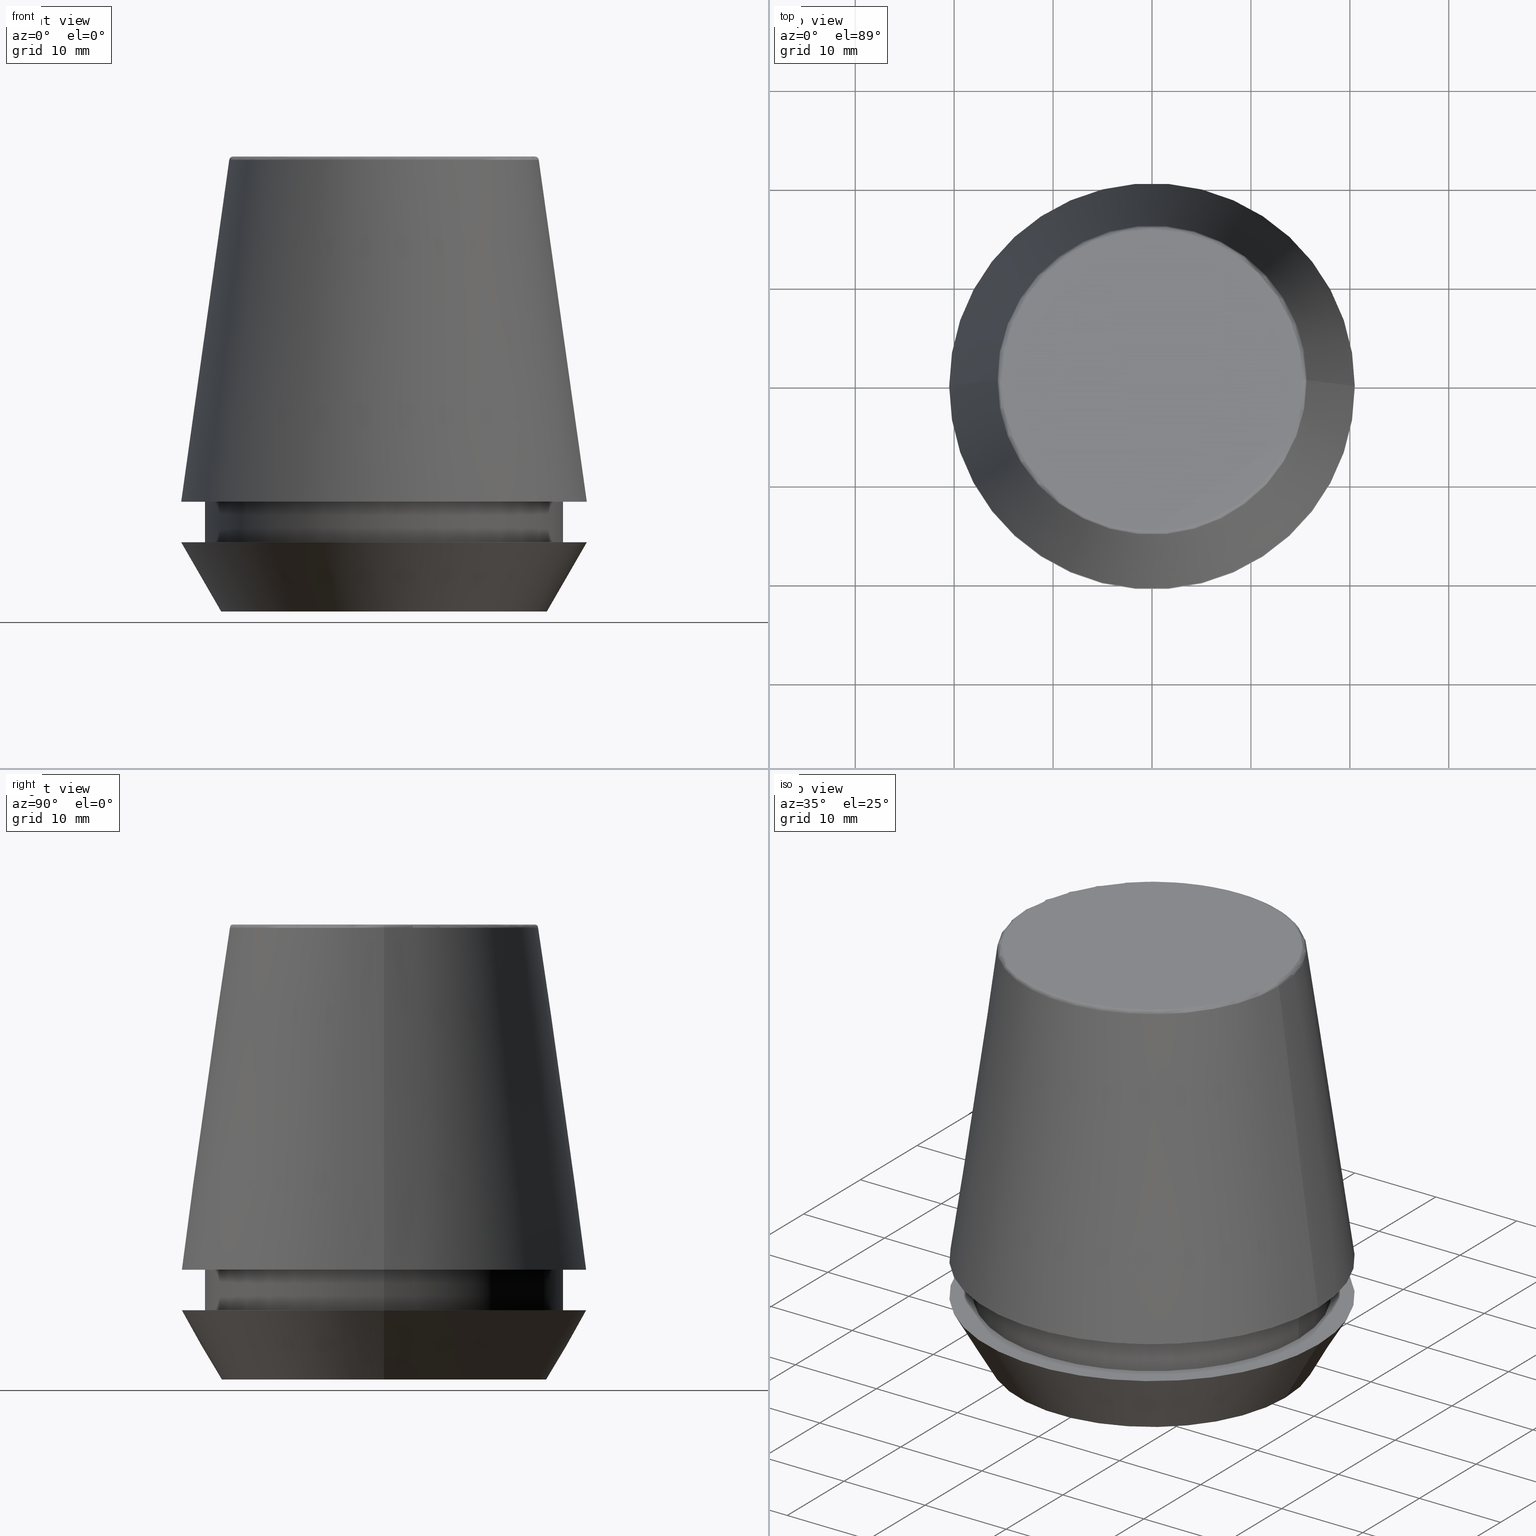
[diagram: canonical four-view strip — front | top / right | iso, engineering-drawing reading convention]
A machine part, canonical four-view strip (front | top / right | iso — engineering-drawing reading convention). The complete STEP part file that produces these views, byte-faithful:
ISO-10303-21;
HEADER;
FILE_DESCRIPTION (( 'STEP AP203' ),
    '1' );
FILE_NAME ('TAP COLLET ER 40G 11.0 X 9.0.STEP',
    '2019-04-10T03:54:42',
    ( '' ),
    ( '' ),
    'SwSTEP 2.0',
    'SolidWorks 2014',
    '' );
FILE_SCHEMA (( 'CONFIG_CONTROL_DESIGN' ));
ENDSEC;

DATA;
#1 = FACE_OUTER_BOUND ( 'NONE', #145, .T. ) ;
#2 = DIRECTION ( 'NONE',  ( 1.224646799147353200E-016, 1.000000000000000000, 0.0000000000000000000 ) ) ;
#3 = CARTESIAN_POINT ( 'NONE',  ( -20.50000000000000000, 2.510525938252074100E-015, 7.000000000000006200 ) ) ;
#4 = DIRECTION ( 'NONE',  ( -0.0000000000000000000, -0.0000000000000000000, 1.000000000000000000 ) ) ;
#5 = DIRECTION ( 'NONE',  ( -0.0000000000000000000, -0.0000000000000000000, 1.000000000000000000 ) ) ;
#6 = ORIENTED_EDGE ( 'NONE', *, *, #98, .F. ) ;
#7 = ORIENTED_EDGE ( 'NONE', *, *, #323, .F. ) ;
#8 = CARTESIAN_POINT ( 'NONE',  ( 0.0000000000000000000, 0.0000000000000000000, 11.09999999999999800 ) ) ;
#9 = AXIS2_PLACEMENT_3D ( 'NONE', #52, #235, #18 ) ;
#10 = EDGE_LOOP ( 'NONE', ( #175, #171 ) ) ;
#11 = FACE_OUTER_BOUND ( 'NONE', #168, .T. ) ;
#12 = CARTESIAN_POINT ( 'NONE',  ( 0.0000000000000000000, 0.0000000000000000000, 46.00000000000000000 ) ) ;
#13 = CARTESIAN_POINT ( 'NONE',  ( 0.0000000000000000000, 0.0000000000000000000, 46.00000000000000000 ) ) ;
#14 = PERSON_AND_ORGANIZATION ( #243, #101 ) ;
#15 = VERTEX_POINT ( 'NONE', #64 ) ;
#16 = DIRECTION ( 'NONE',  ( 0.0000000000000000000, 0.0000000000000000000, -1.000000000000000000 ) ) ;
#17 = EDGE_CURVE ( 'NONE', #165, #26, #155, .T. ) ;
#18 = DIRECTION ( 'NONE',  ( 0.0000000000000000000, 0.0000000000000000000, -1.000000000000000000 ) ) ;
#19 = ADVANCED_FACE ( 'NONE', ( #1 ), #350, .T. ) ;
#20 = DIRECTION ( 'NONE',  ( 1.000000000000000000, 0.0000000000000000000, 0.0000000000000000000 ) ) ;
#21 = ORIENTED_EDGE ( 'NONE', *, *, #296, .T. ) ;
#22 = PRODUCT_DEFINITION_FORMATION_WITH_SPECIFIED_SOURCE ( 'ANY', '', #84, .NOT_KNOWN. ) ;
#23 = ADVANCED_FACE ( 'NONE', ( #266 ), #183, .F. ) ;
#24 = APPROVAL ( #349, 'UNSPECIFIED' ) ;
#25 = ADVANCED_FACE ( 'NONE', ( #223, #242 ), #329, .F. ) ;
#26 = VERTEX_POINT ( 'NONE', #280 ) ;
#27 = MANIFOLD_SOLID_BREP ( 'Revolve1', #365 ) ;
#28 = PERSON_AND_ORGANIZATION_ROLE ( 'design_supplier' ) ;
#29 = EDGE_LOOP ( 'NONE', ( #45, #6 ) ) ;
#30 = DIRECTION ( 'NONE',  ( 1.000000000000000000, 0.0000000000000000000, 0.0000000000000000000 ) ) ;
#31 = DIRECTION ( 'NONE',  ( 1.000000000000000000, 0.0000000000000000000, 0.0000000000000000000 ) ) ;
#32 = PRODUCT_DEFINITION ( 'UNKNOWN', '', #22, #112 ) ;
#33 = CARTESIAN_POINT ( 'NONE',  ( 0.0000000000000000000, 0.0000000000000000000, 0.0000000000000000000 ) ) ;
#34 = DIRECTION ( 'NONE',  ( 0.0000000000000000000, -0.0000000000000000000, 1.000000000000000000 ) ) ;
#35 = CARTESIAN_POINT ( 'NONE',  ( 0.0000000000000000000, 0.0000000000000000000, 0.0000000000000000000 ) ) ;
#36 = DIRECTION ( 'NONE',  ( -0.4999999999999941700, 6.123233995736694500E-017, 0.8660254037844420400 ) ) ;
#37 = LOCAL_TIME ( 9, 24, 42.00000000000000000, #356 ) ;
#38 = DIRECTION ( 'NONE',  ( -0.0000000000000000000, -0.0000000000000000000, 1.000000000000000000 ) ) ;
#39 = APPROVAL_PERSON_ORGANIZATION ( #287, #91, #63 ) ;
#40 = CALENDAR_DATE ( 2019, 10, 4 ) ;
#41 = DIRECTION ( 'NONE',  ( -0.0000000000000000000, -0.0000000000000000000, 1.000000000000000000 ) ) ;
#42 = DIRECTION ( 'NONE',  ( -0.0000000000000000000, -0.0000000000000000000, 1.000000000000000000 ) ) ;
#43 = DIRECTION ( 'NONE',  ( -0.0000000000000000000, -0.0000000000000000000, 1.000000000000000000 ) ) ;
#44 = DATE_AND_TIME ( #81, #37 ) ;
#45 = ORIENTED_EDGE ( 'NONE', *, *, #296, .F. ) ;
#46 = ORIENTED_EDGE ( 'NONE', *, *, #143, .T. ) ;
#47 = AXIS2_PLACEMENT_3D ( 'NONE', #331, #122, #301 ) ;
#48 = FACE_OUTER_BOUND ( 'NONE', #170, .T. ) ;
#49 = DIRECTION ( 'NONE',  ( 0.4999999999999941700, 0.0000000000000000000, 0.8660254037844420400 ) ) ;
#50 = PERSON_AND_ORGANIZATION ( #243, #101 ) ;
#51 = AXIS2_PLACEMENT_3D ( 'NONE', #355, #94, #154 ) ;
#52 = CARTESIAN_POINT ( 'NONE',  ( 15.24773554530077600, 0.0000000000000000000, 45.60000000000000100 ) ) ;
#53 = AXIS2_PLACEMENT_3D ( 'NONE', #222, #2, #192 ) ;
#54 = DATE_AND_TIME ( #151, #386 ) ;
#55 = EDGE_CURVE ( 'NONE', #58, #269, #137, .T. ) ;
#56 = EDGE_CURVE ( 'NONE', #208, #327, #194, .T. ) ;
#57 = EDGE_LOOP ( 'NONE', ( #114, #239, #246, #314 ) ) ;
#58 = VERTEX_POINT ( 'NONE', #93 ) ;
#59 = PERSON_AND_ORGANIZATION ( #243, #101 ) ;
#60 = EDGE_LOOP ( 'NONE', ( #77, #247, #211, #387 ) ) ;
#61 = CARTESIAN_POINT ( 'NONE',  ( 0.0000000000000000000, 0.0000000000000000000, 0.0000000000000000000 ) ) ;
#62 = DATE_AND_TIME ( #40, #351 ) ;
#63 = APPROVAL_ROLE ( '' ) ;
#64 = CARTESIAN_POINT ( 'NONE',  ( 15.64384277279740400, 2.213191991290356800E-015, 45.65566924038402900 ) ) ;
#65 = AXIS2_PLACEMENT_3D ( 'NONE', #190, #354, #148 ) ;
#66 = CALENDAR_DATE ( 2019, 10, 4 ) ;
#67 = DIRECTION ( 'NONE',  ( 1.000000000000000000, 0.0000000000000000000, 0.0000000000000000000 ) ) ;
#68 = VERTEX_POINT ( 'NONE', #3 ) ;
#69 = EDGE_LOOP ( 'NONE', ( #191, #219, #209, #345 ) ) ;
#70 = DIRECTION ( 'NONE',  ( 1.000000000000000000, 0.0000000000000000000, 0.0000000000000000000 ) ) ;
#71 = APPROVAL_DATE_TIME ( #44, #91 ) ;
#72 =( GEOMETRIC_REPRESENTATION_CONTEXT ( 3 ) GLOBAL_UNCERTAINTY_ASSIGNED_CONTEXT ( ( #233 ) ) GLOBAL_UNIT_ASSIGNED_CONTEXT ( ( #330, #121, #300 ) ) REPRESENTATION_CONTEXT ( 'NONE', 'WORKASPACE' ) );
#73 = DIRECTION ( 'NONE',  ( 1.000000000000000000, 0.0000000000000000000, 0.0000000000000000000 ) ) ;
#74 = PERSON_AND_ORGANIZATION ( #243, #101 ) ;
#75 = CC_DESIGN_SECURITY_CLASSIFICATION ( #215, ( #22 ) ) ;
#76 = CIRCLE ( 'NONE', #53, 0.3999999999999975800 ) ;
#77 = ORIENTED_EDGE ( 'NONE', *, *, #143, .F. ) ;
#78 = DIRECTION ( 'NONE',  ( -0.0000000000000000000, -0.0000000000000000000, 1.000000000000000000 ) ) ;
#79 = DIRECTION ( 'NONE',  ( -1.000000000000000000, 0.0000000000000000000, -0.0000000000000000000 ) ) ;
#80 = EDGE_CURVE ( 'NONE', #109, #108, #131, .T. ) ;
#81 = CALENDAR_DATE ( 2019, 10, 4 ) ;
#82 = CARTESIAN_POINT ( 'NONE',  ( 0.0000000000000000000, 0.0000000000000000000, 45.60000000000000100 ) ) ;
#83 = LOCAL_TIME ( 9, 24, 42.00000000000000000, #140 ) ;
#84 = PRODUCT ( 'TAP COLLET ER 40G 11.0 X 9.0', 'TAP COLLET ER 40G 11.0 X 9.0', '', ( #385 ) ) ;
#85 = ORIENTED_EDGE ( 'NONE', *, *, #80, .F. ) ;
#86 = EDGE_LOOP ( 'NONE', ( #107, #85 ) ) ;
#87 = ADVANCED_FACE ( 'NONE', ( #48 ), #293, .T. ) ;
#88 = EDGE_CURVE ( 'NONE', #232, #108, #359, .T. ) ;
#89 = CARTESIAN_POINT ( 'NONE',  ( 0.0000000000000000000, 20.50032537154048700, 11.09999999999999800 ) ) ;
#90 = DATE_TIME_ROLE ( 'creation_date' ) ;
#91 = APPROVAL ( #278, 'UNSPECIFIED' ) ;
#92 = ORIENTED_EDGE ( 'NONE', *, *, #136, .F. ) ;
#93 = CARTESIAN_POINT ( 'NONE',  ( 16.45854811567268100, 0.0000000000000000000, 0.0000000000000000000 ) ) ;
#94 = DIRECTION ( 'NONE',  ( -0.0000000000000000000, -0.0000000000000000000, 1.000000000000000000 ) ) ;
#95 = LINE ( 'NONE', #206, #244 ) ;
#96 = VERTEX_POINT ( 'NONE', #160 ) ;
#97 = CARTESIAN_POINT ( 'NONE',  ( -20.50032537154048700, 0.0000000000000000000, 11.09999999999999800 ) ) ;
#98 = EDGE_CURVE ( 'NONE', #141, #177, #125, .T. ) ;
#99 = CARTESIAN_POINT ( 'NONE',  ( 0.0000000000000000000, 0.0000000000000000000, 7.000000000000006200 ) ) ;
#100 = VECTOR ( 'NONE', #334, 1000.000000000000000 ) ;
#101 = ORGANIZATION ( 'UNSPECIFIED', 'UNSPECIFIED', '' ) ;
#102 = CARTESIAN_POINT ( 'NONE',  ( 18.10000000000000500, 0.0000000000000000000, 46.00000000000000000 ) ) ;
#103 = FACE_OUTER_BOUND ( 'NONE', #69, .T. ) ;
#104 = CIRCLE ( 'NONE', #205, 15.24773554530077600 ) ;
#105 = DIRECTION ( 'NONE',  ( 1.000000000000000000, 0.0000000000000000000, 0.0000000000000000000 ) ) ;
#106 = ADVANCED_FACE ( 'NONE', ( #103 ), #182, .T. ) ;
#107 = ORIENTED_EDGE ( 'NONE', *, *, #174, .F. ) ;
#108 = VERTEX_POINT ( 'NONE', #97 ) ;
#109 = VERTEX_POINT ( 'NONE', #309 ) ;
#110 = ORIENTED_EDGE ( 'NONE', *, *, #180, .F. ) ;
#111 = LINE ( 'NONE', #313, #366 ) ;
#112 = DESIGN_CONTEXT ( 'detailed design', #353, 'design' ) ;
#113 = CIRCLE ( 'NONE', #268, 20.50000000000000000 ) ;
#114 = ORIENTED_EDGE ( 'NONE', *, *, #346, .F. ) ;
#115 = ORIENTED_EDGE ( 'NONE', *, *, #281, .F. ) ;
#116 = ORIENTED_EDGE ( 'NONE', *, *, #207, .T. ) ;
#117 = CYLINDRICAL_SURFACE ( 'NONE', #144, 18.10000000000000500 ) ;
#118 = AXIS2_PLACEMENT_3D ( 'NONE', #13, #286, #197 ) ;
#119 = APPROVAL_ROLE ( '' ) ;
#120 = VECTOR ( 'NONE', #167, 1000.000000000000000 ) ;
#121 =( NAMED_UNIT ( * ) PLANE_ANGLE_UNIT ( ) SI_UNIT ( $, .RADIAN. ) );
#122 = DIRECTION ( 'NONE',  ( -0.0000000000000000000, -0.0000000000000000000, 1.000000000000000000 ) ) ;
#123 = DIRECTION ( 'NONE',  ( 1.000000000000000000, 0.0000000000000000000, 0.0000000000000000000 ) ) ;
#124 = DIRECTION ( 'NONE',  ( -0.0000000000000000000, -0.0000000000000000000, 1.000000000000000000 ) ) ;
#125 = CIRCLE ( 'NONE', #364, 18.10000000000000100 ) ;
#126 = DIRECTION ( 'NONE',  ( -0.0000000000000000000, -0.0000000000000000000, 1.000000000000000000 ) ) ;
#127 = EDGE_CURVE ( 'NONE', #26, #165, #104, .T. ) ;
#128 = FACE_OUTER_BOUND ( 'NONE', #60, .T. ) ;
#129 = CARTESIAN_POINT ( 'NONE',  ( -20.50032537154048700, 0.0000000000000000000, 11.09999999999999800 ) ) ;
#130 = DIRECTION ( 'NONE',  ( -0.0000000000000000000, -0.0000000000000000000, 1.000000000000000000 ) ) ;
#131 = CIRCLE ( 'NONE', #213, 20.50032537154048700 ) ;
#132 = CIRCLE ( 'NONE', #47, 16.45854811567268100 ) ;
#133 = DIRECTION ( 'NONE',  ( -0.0000000000000000000, -0.0000000000000000000, 1.000000000000000000 ) ) ;
#134 = DIRECTION ( 'NONE',  ( -1.000000000000000000, 0.0000000000000000000, -0.0000000000000000000 ) ) ;
#135 = APPROVAL_PERSON_ORGANIZATION ( #294, #24, #146 ) ;
#136 = EDGE_CURVE ( 'NONE', #68, #96, #113, .T. ) ;
#137 = CIRCLE ( 'NONE', #381, 16.45854811567268100 ) ;
#138 = TOROIDAL_SURFACE ( 'NONE', #283, 15.24773554530077600, 0.3999999999999991900 ) ;
#139 = PERSON_AND_ORGANIZATION ( #243, #101 ) ;
#140 = COORDINATED_UNIVERSAL_TIME_OFFSET ( 5, 30, .AHEAD. ) ;
#141 = VERTEX_POINT ( 'NONE', #284 ) ;
#142 = ADVANCED_FACE ( 'NONE', ( #128 ), #117, .T. ) ;
#143 = EDGE_CURVE ( 'NONE', #141, #208, #111, .T. ) ;
#144 = AXIS2_PLACEMENT_3D ( 'NONE', #285, #43, #163 ) ;
#145 = EDGE_LOOP ( 'NONE', ( #344, #250, #169, #92 ) ) ;
#146 = APPROVAL_ROLE ( '' ) ;
#147 = APPLICATION_PROTOCOL_DEFINITION ( 'international standard', 'config_control_design', 1994, #353 ) ;
#148 = DIRECTION ( 'NONE',  ( 1.000000000000000000, 0.0000000000000000000, 0.0000000000000000000 ) ) ;
#149 = EDGE_LOOP ( 'NONE', ( #162, #185 ) ) ;
#150 = LINE ( 'NONE', #271, #210 ) ;
#151 = CALENDAR_DATE ( 2019, 10, 4 ) ;
#152 = ADVANCED_FACE ( 'NONE', ( #295 ), #199, .T. ) ;
#153 = AXIS2_PLACEMENT_3D ( 'NONE', #172, #16, #372 ) ;
#154 = DIRECTION ( 'NONE',  ( 1.000000000000000000, 0.0000000000000000000, 0.0000000000000000000 ) ) ;
#155 = CIRCLE ( 'NONE', #288, 15.24773554530077600 ) ;
#156 = CALENDAR_DATE ( 2019, 10, 4 ) ;
#157 = CIRCLE ( 'NONE', #317, 18.10000000000000100 ) ;
#158 = CARTESIAN_POINT ( 'NONE',  ( 0.0000000000000000000, 0.0000000000000000000, 45.60000000000000100 ) ) ;
#159 = AXIS2_PLACEMENT_3D ( 'NONE', #89, #303, #123 ) ;
#160 = CARTESIAN_POINT ( 'NONE',  ( 20.50000000000000000, 0.0000000000000000000, 7.000000000000006200 ) ) ;
#161 = EDGE_LOOP ( 'NONE', ( #225, #7 ) ) ;
#162 = ORIENTED_EDGE ( 'NONE', *, *, #17, .T. ) ;
#163 = DIRECTION ( 'NONE',  ( 1.000000000000000000, 0.0000000000000000000, 0.0000000000000000000 ) ) ;
#164 = EDGE_CURVE ( 'NONE', #15, #109, #375, .T. ) ;
#165 = VERTEX_POINT ( 'NONE', #203 ) ;
#166 = DIRECTION ( 'NONE',  ( 1.000000000000000000, 0.0000000000000000000, 0.0000000000000000000 ) ) ;
#167 = DIRECTION ( 'NONE',  ( 0.1391731009600587200, 1.704378926181473400E-017, -0.9902680687415712500 ) ) ;
#168 = EDGE_LOOP ( 'NONE', ( #336, #321, #362, #322 ) ) ;
#169 = ORIENTED_EDGE ( 'NONE', *, *, #249, .T. ) ;
#170 = EDGE_LOOP ( 'NONE', ( #201, #367, #116, #176 ) ) ;
#171 = ORIENTED_EDGE ( 'NONE', *, *, #56, .T. ) ;
#172 = CARTESIAN_POINT ( 'NONE',  ( 0.0000000000000000000, 0.0000000000000000000, 11.09999999999999800 ) ) ;
#173 = PLANE ( 'NONE',  #221 ) ;
#174 = EDGE_CURVE ( 'NONE', #108, #109, #200, .T. ) ;
#175 = ORIENTED_EDGE ( 'NONE', *, *, #281, .T. ) ;
#176 = ORIENTED_EDGE ( 'NONE', *, *, #127, .F. ) ;
#177 = VERTEX_POINT ( 'NONE', #231 ) ;
#178 = AXIS2_PLACEMENT_3D ( 'NONE', #8, #361, #363 ) ;
#179 = CIRCLE ( 'NONE', #272, 18.10000000000000500 ) ;
#180 = EDGE_CURVE ( 'NONE', #177, #327, #241, .T. ) ;
#181 = ADVANCED_FACE ( 'NONE', ( #11 ), #138, .T. ) ;
#182 = CONICAL_SURFACE ( 'NONE', #178, 20.50032537154048700, 0.1396263401595396200 ) ;
#183 = PLANE ( 'NONE',  #275 ) ;
#184 = DATE_TIME_ROLE ( 'classification_date' ) ;
#185 = ORIENTED_EDGE ( 'NONE', *, *, #127, .T. ) ;
#186 = PERSON_AND_ORGANIZATION_ROLE ( 'design_owner' ) ;
#187 = ADVANCED_FACE ( 'NONE', ( #204 ), #374, .F. ) ;
#188 = CONICAL_SURFACE ( 'NONE', #153, 20.50032537154048700, 0.1396263401595396200 ) ;
#189 = CARTESIAN_POINT ( 'NONE',  ( 0.0000000000000000000, 0.0000000000000000000, 0.0000000000000000000 ) ) ;
#190 = CARTESIAN_POINT ( 'NONE',  ( 0.0000000000000000000, 0.0000000000000000000, 45.65566924038402900 ) ) ;
#191 = ORIENTED_EDGE ( 'NONE', *, *, #164, .F. ) ;
#192 = DIRECTION ( 'NONE',  ( -1.000000000000000000, 1.224646799147353900E-016, 0.0000000000000000000 ) ) ;
#193 = DIRECTION ( 'NONE',  ( 1.000000000000000000, 0.0000000000000000000, 0.0000000000000000000 ) ) ;
#194 = CIRCLE ( 'NONE', #379, 18.10000000000000500 ) ;
#195 = CIRCLE ( 'NONE', #9, 0.3999999999999975800 ) ;
#196 = APPROVAL_DATE_TIME ( #54, #230 ) ;
#197 = DIRECTION ( 'NONE',  ( 1.000000000000000000, 0.0000000000000000000, 0.0000000000000000000 ) ) ;
#198 = DATE_AND_TIME ( #66, #83 ) ;
#199 = CYLINDRICAL_SURFACE ( 'NONE', #118, 18.10000000000000500 ) ;
#200 = CIRCLE ( 'NONE', #304, 20.50032537154048700 ) ;
#201 = ORIENTED_EDGE ( 'NONE', *, *, #320, .F. ) ;
#202 = CC_DESIGN_APPROVAL ( #91, ( #22 ) ) ;
#203 = CARTESIAN_POINT ( 'NONE',  ( 15.24773554530077600, 0.0000000000000000000, 46.00000000000000000 ) ) ;
#204 = FACE_OUTER_BOUND ( 'NONE', #149, .T. ) ;
#205 = AXIS2_PLACEMENT_3D ( 'NONE', #12, #42, #311 ) ;
#206 = CARTESIAN_POINT ( 'NONE',  ( 16.45854811567268100, 0.0000000000000000000, 0.0000000000000000000 ) ) ;
#207 = EDGE_CURVE ( 'NONE', #15, #165, #195, .T. ) ;
#208 = VERTEX_POINT ( 'NONE', #319 ) ;
#209 = ORIENTED_EDGE ( 'NONE', *, *, #88, .T. ) ;
#210 = VECTOR ( 'NONE', #36, 1000.000000000000000 ) ;
#211 = ORIENTED_EDGE ( 'NONE', *, *, #180, .T. ) ;
#212 = EDGE_CURVE ( 'NONE', #232, #15, #377, .T. ) ;
#213 = AXIS2_PLACEMENT_3D ( 'NONE', #226, #38, #260 ) ;
#214 = CONICAL_SURFACE ( 'NONE', #51, 16.45854811567268100, 0.5235987755982921500 ) ;
#215 = SECURITY_CLASSIFICATION ( '', '', #216 ) ;
#216 = SECURITY_CLASSIFICATION_LEVEL ( 'unclassified' ) ;
#217 = CARTESIAN_POINT ( 'NONE',  ( 0.0000000000000000000, 0.0000000000000000000, 46.00000000000000000 ) ) ;
#218 = APPLICATION_PROTOCOL_DEFINITION ( 'international standard', 'config_control_design', 1994, #279 ) ;
#219 = ORIENTED_EDGE ( 'NONE', *, *, #212, .F. ) ;
#220 = DIRECTION ( 'NONE',  ( -0.0000000000000000000, -0.0000000000000000000, 1.000000000000000000 ) ) ;
#221 = AXIS2_PLACEMENT_3D ( 'NONE', #373, #318, #79 ) ;
#222 = CARTESIAN_POINT ( 'NONE',  ( -15.24773554530077600, 1.867309052979791600E-015, 45.60000000000000100 ) ) ;
#223 = FACE_OUTER_BOUND ( 'NONE', #86, .T. ) ;
#224 = CARTESIAN_POINT ( 'NONE',  ( 0.0000000000000000000, 0.0000000000000000000, 11.09999999999999800 ) ) ;
#225 = ORIENTED_EDGE ( 'NONE', *, *, #55, .F. ) ;
#226 = CARTESIAN_POINT ( 'NONE',  ( 0.0000000000000000000, 0.0000000000000000000, 11.09999999999999800 ) ) ;
#227 = AXIS2_PLACEMENT_3D ( 'NONE', #158, #5, #73 ) ;
#228 = CARTESIAN_POINT ( 'NONE',  ( 0.0000000000000000000, 0.0000000000000000000, 6.999999999999999100 ) ) ;
#229 = ORIENTED_EDGE ( 'NONE', *, *, #55, .T. ) ;
#230 = APPROVAL ( #328, 'UNSPECIFIED' ) ;
#231 = CARTESIAN_POINT ( 'NONE',  ( 18.10000000000000100, 0.0000000000000000000, 6.999999999999999100 ) ) ;
#232 = VERTEX_POINT ( 'NONE', #290 ) ;
#233 = UNCERTAINTY_MEASURE_WITH_UNIT (LENGTH_MEASURE( 1.000000000000000100E-005 ), #330, 'distance_accuracy_value', 'NONE');
#234 = CARTESIAN_POINT ( 'NONE',  ( -16.45854811567268100, 2.263058382549599700E-015, 0.0000000000000000000 ) ) ;
#235 = DIRECTION ( 'NONE',  ( 0.0000000000000000000, -1.000000000000000000, 0.0000000000000000000 ) ) ;
#236 = EDGE_LOOP ( 'NONE', ( #229, #380, #310, #262 ) ) ;
#237 = DIRECTION ( 'NONE',  ( -0.0000000000000000000, -0.0000000000000000000, 1.000000000000000000 ) ) ;
#238 = ADVANCED_FACE ( 'NONE', ( #259, #360 ), #173, .F. ) ;
#239 = ORIENTED_EDGE ( 'NONE', *, *, #164, .T. ) ;
#240 = EDGE_LOOP ( 'NONE', ( #21, #46, #115, #110 ) ) ;
#241 = LINE ( 'NONE', #102, #292 ) ;
#242 = FACE_BOUND ( 'NONE', #10, .T. ) ;
#243 = PERSON ( 'UNSPECIFIED', 'UNSPECIFIED', 'UNSPECIFIED', ('UNSPECIFIED'), ('UNSPECIFIED'), ('UNSPECIFIED') ) ;
#244 = VECTOR ( 'NONE', #49, 1000.000000000000000 ) ;
#245 = CC_DESIGN_PERSON_AND_ORGANIZATION_ASSIGNMENT ( #59, #384, ( #215 ) ) ;
#246 = ORIENTED_EDGE ( 'NONE', *, *, #80, .T. ) ;
#247 = ORIENTED_EDGE ( 'NONE', *, *, #98, .T. ) ;
#248 = DATE_AND_TIME ( #156, #282 ) ;
#249 = EDGE_CURVE ( 'NONE', #58, #96, #95, .T. ) ;
#250 = ORIENTED_EDGE ( 'NONE', *, *, #323, .T. ) ;
#251 = CC_DESIGN_PERSON_AND_ORGANIZATION_ASSIGNMENT ( #14, #253, ( #22 ) ) ;
#252 = CC_DESIGN_DATE_AND_TIME_ASSIGNMENT ( #198, #184, ( #215 ) ) ;
#253 = PERSON_AND_ORGANIZATION_ROLE ( 'creator' ) ;
#254 = AXIS2_PLACEMENT_3D ( 'NONE', #338, #133, #105 ) ;
#255 = DIRECTION ( 'NONE',  ( 0.0000000000000000000, 0.0000000000000000000, 1.000000000000000000 ) ) ;
#256 = AXIS2_PLACEMENT_3D ( 'NONE', #316, #78, #340 ) ;
#257 = CARTESIAN_POINT ( 'NONE',  ( 18.10000000000000500, 0.0000000000000000000, 11.09999999999999800 ) ) ;
#258 = DIRECTION ( 'NONE',  ( -0.0000000000000000000, -0.0000000000000000000, 1.000000000000000000 ) ) ;
#259 = FACE_BOUND ( 'NONE', #29, .T. ) ;
#260 = DIRECTION ( 'NONE',  ( 1.000000000000000000, 0.0000000000000000000, 0.0000000000000000000 ) ) ;
#261 = AXIS2_PLACEMENT_3D ( 'NONE', #33, #255, #30 ) ;
#262 = ORIENTED_EDGE ( 'NONE', *, *, #249, .F. ) ;
#263 = DIRECTION ( 'NONE',  ( 1.000000000000000000, 0.0000000000000000000, 0.0000000000000000000 ) ) ;
#264 = CARTESIAN_POINT ( 'NONE',  ( 0.0000000000000000000, 0.0000000000000000000, 11.09999999999999800 ) ) ;
#265 = CARTESIAN_POINT ( 'NONE',  ( 0.0000000000000000000, 15.24773554530077600, 46.00000000000000000 ) ) ;
#266 = FACE_OUTER_BOUND ( 'NONE', #161, .T. ) ;
#267 = AXIS2_PLACEMENT_3D ( 'NONE', #265, #339, #134 ) ;
#268 = AXIS2_PLACEMENT_3D ( 'NONE', #99, #335, #166 ) ;
#269 = VERTEX_POINT ( 'NONE', #234 ) ;
#270 = DIRECTION ( 'NONE',  ( -0.0000000000000000000, -0.0000000000000000000, 1.000000000000000000 ) ) ;
#271 = CARTESIAN_POINT ( 'NONE',  ( -16.45854811567268100, 2.015590826847124800E-015, 0.0000000000000000000 ) ) ;
#272 = AXIS2_PLACEMENT_3D ( 'NONE', #224, #4, #193 ) ;
#273 = EDGE_CURVE ( 'NONE', #96, #68, #376, .T. ) ;
#274 = ADVANCED_FACE ( 'NONE', ( #357 ), #188, .T. ) ;
#275 = AXIS2_PLACEMENT_3D ( 'NONE', #189, #34, #67 ) ;
#276 = CC_DESIGN_PERSON_AND_ORGANIZATION_ASSIGNMENT ( #50, #298, ( #32 ) ) ;
#277 = DIRECTION ( 'NONE',  ( -0.0000000000000000000, -0.0000000000000000000, 1.000000000000000000 ) ) ;
#278 = APPROVAL_STATUS ( 'not_yet_approved' ) ;
#279 = APPLICATION_CONTEXT ( 'configuration controlled 3d designs of mechanical parts and assemblies' ) ;
#280 = CARTESIAN_POINT ( 'NONE',  ( -15.24773554530077600, 1.891563625393435400E-015, 46.00000000000000000 ) ) ;
#281 = EDGE_CURVE ( 'NONE', #327, #208, #179, .T. ) ;
#282 = LOCAL_TIME ( 9, 24, 42.00000000000000000, #315 ) ;
#283 = AXIS2_PLACEMENT_3D ( 'NONE', #82, #237, #20 ) ;
#284 = CARTESIAN_POINT ( 'NONE',  ( -18.10000000000000100, 2.216610706456709600E-015, 6.999999999999999100 ) ) ;
#285 = CARTESIAN_POINT ( 'NONE',  ( 0.0000000000000000000, 0.0000000000000000000, 46.00000000000000000 ) ) ;
#286 = DIRECTION ( 'NONE',  ( -0.0000000000000000000, -0.0000000000000000000, 1.000000000000000000 ) ) ;
#287 = PERSON_AND_ORGANIZATION ( #243, #101 ) ;
#288 = AXIS2_PLACEMENT_3D ( 'NONE', #217, #220, #347 ) ;
#289 = CC_DESIGN_DATE_AND_TIME_ASSIGNMENT ( #62, #90, ( #32 ) ) ;
#290 = CARTESIAN_POINT ( 'NONE',  ( -15.64384277279740400, 0.0000000000000000000, 45.65566924038402900 ) ) ;
#291 = CC_DESIGN_PERSON_AND_ORGANIZATION_ASSIGNMENT ( #297, #186, ( #84 ) ) ;
#292 = VECTOR ( 'NONE', #270, 1000.000000000000000 ) ;
#293 = TOROIDAL_SURFACE ( 'NONE', #227, 15.24773554530077600, 0.3999999999999991900 ) ;
#294 = PERSON_AND_ORGANIZATION ( #243, #101 ) ;
#295 = FACE_OUTER_BOUND ( 'NONE', #240, .T. ) ;
#296 = EDGE_CURVE ( 'NONE', #177, #141, #157, .T. ) ;
#297 = PERSON_AND_ORGANIZATION ( #243, #101 ) ;
#298 = PERSON_AND_ORGANIZATION_ROLE ( 'creator' ) ;
#299 = AXIS2_PLACEMENT_3D ( 'NONE', #61, #277, #31 ) ;
#300 =( NAMED_UNIT ( * ) SI_UNIT ( $, .STERADIAN. ) SOLID_ANGLE_UNIT ( ) );
#301 = DIRECTION ( 'NONE',  ( 1.000000000000000000, 0.0000000000000000000, 0.0000000000000000000 ) ) ;
#302 = APPROVAL_PERSON_ORGANIZATION ( #74, #230, #119 ) ;
#303 = DIRECTION ( 'NONE',  ( 0.0000000000000000000, -0.0000000000000000000, 1.000000000000000000 ) ) ;
#304 = AXIS2_PLACEMENT_3D ( 'NONE', #264, #337, #370 ) ;
#305 = DIRECTION ( 'NONE',  ( 1.000000000000000000, 0.0000000000000000000, 0.0000000000000000000 ) ) ;
#306 = CC_DESIGN_APPROVAL ( #24, ( #215 ) ) ;
#307 = CARTESIAN_POINT ( 'NONE',  ( 0.0000000000000000000, 0.0000000000000000000, 11.09999999999999800 ) ) ;
#308 = EDGE_CURVE ( 'NONE', #269, #68, #150, .T. ) ;
#309 = CARTESIAN_POINT ( 'NONE',  ( 20.50032537154048700, 2.510565784773633700E-015, 11.09999999999999800 ) ) ;
#310 = ORIENTED_EDGE ( 'NONE', *, *, #273, .F. ) ;
#311 = DIRECTION ( 'NONE',  ( 1.000000000000000000, 0.0000000000000000000, 0.0000000000000000000 ) ) ;
#312 = CC_DESIGN_APPROVAL ( #230, ( #32 ) ) ;
#313 = CARTESIAN_POINT ( 'NONE',  ( -18.10000000000000500, 2.216610706456710000E-015, 46.00000000000000000 ) ) ;
#314 = ORIENTED_EDGE ( 'NONE', *, *, #88, .F. ) ;
#315 = COORDINATED_UNIVERSAL_TIME_OFFSET ( 5, 30, .AHEAD. ) ;
#316 = CARTESIAN_POINT ( 'NONE',  ( 0.0000000000000000000, 0.0000000000000000000, 7.000000000000006200 ) ) ;
#317 = AXIS2_PLACEMENT_3D ( 'NONE', #332, #124, #305 ) ;
#318 = DIRECTION ( 'NONE',  ( 0.0000000000000000000, 0.0000000000000000000, -1.000000000000000000 ) ) ;
#319 = CARTESIAN_POINT ( 'NONE',  ( -18.10000000000000500, 2.216610706456710000E-015, 11.09999999999999800 ) ) ;
#320 = EDGE_CURVE ( 'NONE', #232, #26, #76, .T. ) ;
#321 = ORIENTED_EDGE ( 'NONE', *, *, #320, .T. ) ;
#322 = ORIENTED_EDGE ( 'NONE', *, *, #207, .F. ) ;
#323 = EDGE_CURVE ( 'NONE', #269, #58, #132, .T. ) ;
#324 = ORIENTED_EDGE ( 'NONE', *, *, #273, .T. ) ;
#325 = CIRCLE ( 'NONE', #65, 15.64384277279740400 ) ;
#326 = CC_DESIGN_PERSON_AND_ORGANIZATION_ASSIGNMENT ( #139, #28, ( #22 ) ) ;
#327 = VERTEX_POINT ( 'NONE', #257 ) ;
#328 = APPROVAL_STATUS ( 'not_yet_approved' ) ;
#329 = PLANE ( 'NONE',  #159 ) ;
#330 =( LENGTH_UNIT ( ) NAMED_UNIT ( * ) SI_UNIT ( .MILLI., .METRE. ) );
#331 = CARTESIAN_POINT ( 'NONE',  ( 0.0000000000000000000, 0.0000000000000000000, 0.0000000000000000000 ) ) ;
#332 = CARTESIAN_POINT ( 'NONE',  ( 0.0000000000000000000, 0.0000000000000000000, 6.999999999999999100 ) ) ;
#333 = DIRECTION ( 'NONE',  ( 1.000000000000000000, 0.0000000000000000000, 0.0000000000000000000 ) ) ;
#334 = DIRECTION ( 'NONE',  ( -0.1391731009600587200, 0.0000000000000000000, -0.9902680687415712500 ) ) ;
#335 = DIRECTION ( 'NONE',  ( -0.0000000000000000000, -0.0000000000000000000, 1.000000000000000000 ) ) ;
#336 = ORIENTED_EDGE ( 'NONE', *, *, #346, .T. ) ;
#337 = DIRECTION ( 'NONE',  ( -0.0000000000000000000, -0.0000000000000000000, 1.000000000000000000 ) ) ;
#338 = CARTESIAN_POINT ( 'NONE',  ( 0.0000000000000000000, 0.0000000000000000000, 45.65566924038402900 ) ) ;
#339 = DIRECTION ( 'NONE',  ( 0.0000000000000000000, 0.0000000000000000000, -1.000000000000000000 ) ) ;
#340 = DIRECTION ( 'NONE',  ( 1.000000000000000000, 0.0000000000000000000, 0.0000000000000000000 ) ) ;
#341 = ADVANCED_FACE ( 'NONE', ( #343 ), #214, .T. ) ;
#342 = PRODUCT_RELATED_PRODUCT_CATEGORY ( 'detail', '', ( #84 ) ) ;
#343 = FACE_OUTER_BOUND ( 'NONE', #236, .T. ) ;
#344 = ORIENTED_EDGE ( 'NONE', *, *, #308, .F. ) ;
#345 = ORIENTED_EDGE ( 'NONE', *, *, #174, .T. ) ;
#346 = EDGE_CURVE ( 'NONE', #15, #232, #325, .T. ) ;
#347 = DIRECTION ( 'NONE',  ( 1.000000000000000000, 0.0000000000000000000, 0.0000000000000000000 ) ) ;
#348 = COORDINATED_UNIVERSAL_TIME_OFFSET ( 5, 30, .AHEAD. ) ;
#349 = APPROVAL_STATUS ( 'not_yet_approved' ) ;
#350 = CONICAL_SURFACE ( 'NONE', #299, 16.45854811567268100, 0.5235987755982921500 ) ;
#351 = LOCAL_TIME ( 9, 24, 42.00000000000000000, #348 ) ;
#352 = ADVANCED_BREP_SHAPE_REPRESENTATION ( 'TAP COLLET ER 40G 11.0 X 9.0', ( #27, #261 ), #72 ) ;
#353 = APPLICATION_CONTEXT ( 'configuration controlled 3d designs of mechanical parts and assemblies' ) ;
#354 = DIRECTION ( 'NONE',  ( -0.0000000000000000000, -0.0000000000000000000, 1.000000000000000000 ) ) ;
#355 = CARTESIAN_POINT ( 'NONE',  ( 0.0000000000000000000, 0.0000000000000000000, 0.0000000000000000000 ) ) ;
#356 = COORDINATED_UNIVERSAL_TIME_OFFSET ( 5, 30, .AHEAD. ) ;
#357 = FACE_OUTER_BOUND ( 'NONE', #57, .T. ) ;
#358 = PRODUCT_DEFINITION_SHAPE ( 'NONE', 'NONE',  #32 ) ;
#359 = LINE ( 'NONE', #129, #100 ) ;
#360 = FACE_OUTER_BOUND ( 'NONE', #378, .T. ) ;
#361 = DIRECTION ( 'NONE',  ( 0.0000000000000000000, 0.0000000000000000000, -1.000000000000000000 ) ) ;
#362 = ORIENTED_EDGE ( 'NONE', *, *, #17, .F. ) ;
#363 = DIRECTION ( 'NONE',  ( -1.000000000000000000, 0.0000000000000000000, 0.0000000000000000000 ) ) ;
#364 = AXIS2_PLACEMENT_3D ( 'NONE', #228, #41, #263 ) ;
#365 = CLOSED_SHELL ( 'NONE', ( #181, #274, #152, #341, #23, #19, #238, #142, #25, #106, #87, #187 ) ) ;
#366 = VECTOR ( 'NONE', #130, 1000.000000000000000 ) ;
#367 = ORIENTED_EDGE ( 'NONE', *, *, #212, .T. ) ;
#368 = COORDINATED_UNIVERSAL_TIME_OFFSET ( 5, 30, .AHEAD. ) ;
#369 = CARTESIAN_POINT ( 'NONE',  ( 20.50032537154048700, 2.510565784773633700E-015, 11.09999999999999800 ) ) ;
#370 = DIRECTION ( 'NONE',  ( 1.000000000000000000, 0.0000000000000000000, 0.0000000000000000000 ) ) ;
#371 = ORIENTED_EDGE ( 'NONE', *, *, #136, .T. ) ;
#372 = DIRECTION ( 'NONE',  ( -1.000000000000000000, 0.0000000000000000000, 0.0000000000000000000 ) ) ;
#373 = CARTESIAN_POINT ( 'NONE',  ( 0.0000000000000000000, 20.50000000000000000, 7.000000000000002700 ) ) ;
#374 = PLANE ( 'NONE',  #267 ) ;
#375 = LINE ( 'NONE', #369, #120 ) ;
#376 = CIRCLE ( 'NONE', #256, 20.50000000000000000 ) ;
#377 = CIRCLE ( 'NONE', #254, 15.64384277279740400 ) ;
#378 = EDGE_LOOP ( 'NONE', ( #324, #371 ) ) ;
#379 = AXIS2_PLACEMENT_3D ( 'NONE', #307, #126, #333 ) ;
#380 = ORIENTED_EDGE ( 'NONE', *, *, #308, .T. ) ;
#381 = AXIS2_PLACEMENT_3D ( 'NONE', #35, #258, #70 ) ;
#382 = APPROVAL_DATE_TIME ( #248, #24 ) ;
#383 = SHAPE_DEFINITION_REPRESENTATION ( #358, #352 ) ;
#384 = PERSON_AND_ORGANIZATION_ROLE ( 'classification_officer' ) ;
#385 = MECHANICAL_CONTEXT ( 'NONE', #279, 'mechanical' ) ;
#386 = LOCAL_TIME ( 9, 24, 42.00000000000000000, #368 ) ;
#387 = ORIENTED_EDGE ( 'NONE', *, *, #56, .F. ) ;
ENDSEC;
END-ISO-10303-21;
